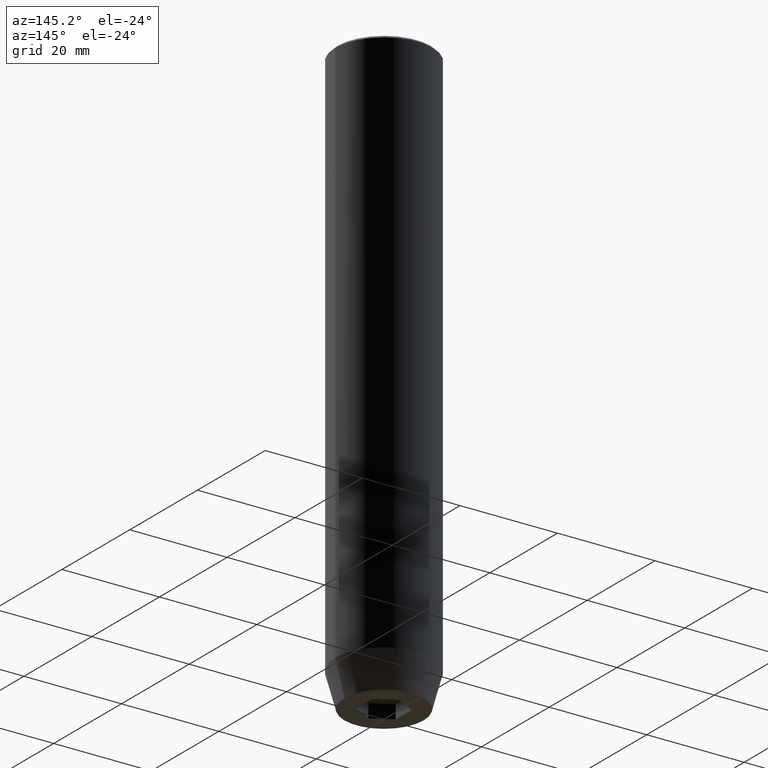
[diagram: clean part render]
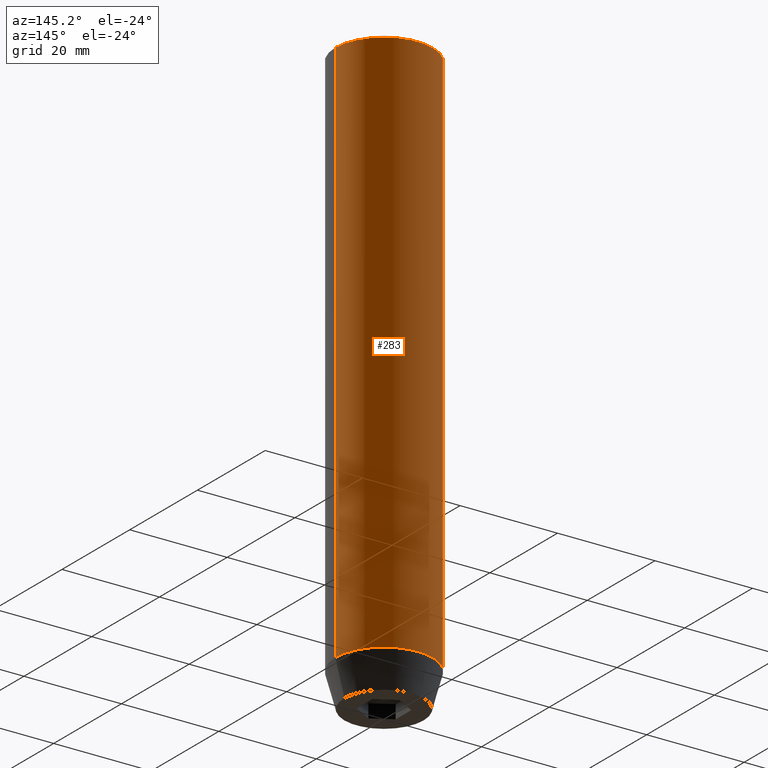
[diagram: same view with one face highlighted and labeled with its STEP entity id]
A machine part, auxiliary view. The second image highlights one B-rep face of the part: STEP entity #283.
In plain terms, the highlighted cylindrical surface (partial cylindrical patch) has radius 10 mm, axis along (-0, -0, 1).
Its self-contained STEP definition (entity closure, byte-faithful):
#22 = CARTESIAN_POINT ( 'NONE',  ( 10.00000000000000000, 0.000000000000000000, 0.000000000000000000 ) ) ;
#30 = ORIENTED_EDGE ( 'NONE', *, *, #97, .T. ) ;
#37 = DIRECTION ( 'NONE',  ( 1.000000000000000000, 0.000000000000000000, 0.000000000000000000 ) ) ;
#40 = VERTEX_POINT ( 'NONE', #136 ) ;
#49 = LINE ( 'NONE', #335, #381 ) ;
#83 = CARTESIAN_POINT ( 'NONE',  ( 10.00000000000000000, 0.000000000000000000, -112.9999999999999858 ) ) ;
#97 = EDGE_CURVE ( 'NONE', #246, #506, #263, .T. ) ;
#108 = EDGE_CURVE ( 'NONE', #289, #506, #269, .T. ) ;
#131 = CYLINDRICAL_SURFACE ( 'NONE', #494, 10.00000000000000000 ) ;
#136 = CARTESIAN_POINT ( 'NONE',  ( -10.00000000000000000, 1.224646799147353256E-15, -112.9999999999999858 ) ) ;
#166 = FACE_OUTER_BOUND ( 'NONE', #240, .T. ) ;
#169 = DIRECTION ( 'NONE',  ( 0.000000000000000000, 0.000000000000000000, -1.000000000000000000 ) ) ;
#214 = VECTOR ( 'NONE', #225, 1000.000000000000000 ) ;
#225 = DIRECTION ( 'NONE',  ( -0.000000000000000000, -0.000000000000000000, 1.000000000000000000 ) ) ;
#240 = EDGE_LOOP ( 'NONE', ( #275, #382, #30, #262 ) ) ;
#246 = VERTEX_POINT ( 'NONE', #538 ) ;
#262 = ORIENTED_EDGE ( 'NONE', *, *, #108, .F. ) ;
#263 = CIRCLE ( 'NONE', #573, 10.00000000000000000 ) ;
#269 = LINE ( 'NONE', #22, #214 ) ;
#273 = DIRECTION ( 'NONE',  ( 1.000000000000000000, 0.000000000000000000, 0.000000000000000000 ) ) ;
#275 = ORIENTED_EDGE ( 'NONE', *, *, #341, .T. ) ;
#283 = ADVANCED_FACE ( 'NONE', ( #166 ), #131, .T. ) ;
#285 = DIRECTION ( 'NONE',  ( -0.000000000000000000, -0.000000000000000000, 1.000000000000000000 ) ) ;
#289 = VERTEX_POINT ( 'NONE', #83 ) ;
#313 = CARTESIAN_POINT ( 'NONE',  ( 0.000000000000000000, 0.000000000000000000, -112.9999999999999858 ) ) ;
#323 = DIRECTION ( 'NONE',  ( -0.000000000000000000, -0.000000000000000000, 1.000000000000000000 ) ) ;
#335 = CARTESIAN_POINT ( 'NONE',  ( -10.00000000000000000, 1.224646799147353256E-15, 0.000000000000000000 ) ) ;
#341 = EDGE_CURVE ( 'NONE', #289, #40, #508, .T. ) ;
#381 = VECTOR ( 'NONE', #285, 1000.000000000000000 ) ;
#382 = ORIENTED_EDGE ( 'NONE', *, *, #456, .T. ) ;
#390 = CARTESIAN_POINT ( 'NONE',  ( 10.00000000000000000, 0.000000000000000000, -0.5000000000000125455 ) ) ;
#437 = DIRECTION ( 'NONE',  ( 1.000000000000000000, 0.000000000000000000, 0.000000000000000000 ) ) ;
#439 = CARTESIAN_POINT ( 'NONE',  ( 0.000000000000000000, 0.000000000000000000, -0.5000000000000125455 ) ) ;
#456 = EDGE_CURVE ( 'NONE', #40, #246, #49, .T. ) ;
#482 = AXIS2_PLACEMENT_3D ( 'NONE', #313, #323, #437 ) ;
#493 = CARTESIAN_POINT ( 'NONE',  ( 0.000000000000000000, 0.000000000000000000, 0.000000000000000000 ) ) ;
#494 = AXIS2_PLACEMENT_3D ( 'NONE', #493, #566, #37 ) ;
#506 = VERTEX_POINT ( 'NONE', #390 ) ;
#508 = CIRCLE ( 'NONE', #482, 10.00000000000000000 ) ;
#538 = CARTESIAN_POINT ( 'NONE',  ( -10.00000000000000000, 1.224646799147353256E-15, -0.5000000000000125455 ) ) ;
#566 = DIRECTION ( 'NONE',  ( -0.000000000000000000, -0.000000000000000000, 1.000000000000000000 ) ) ;
#573 = AXIS2_PLACEMENT_3D ( 'NONE', #439, #169, #273 ) ;